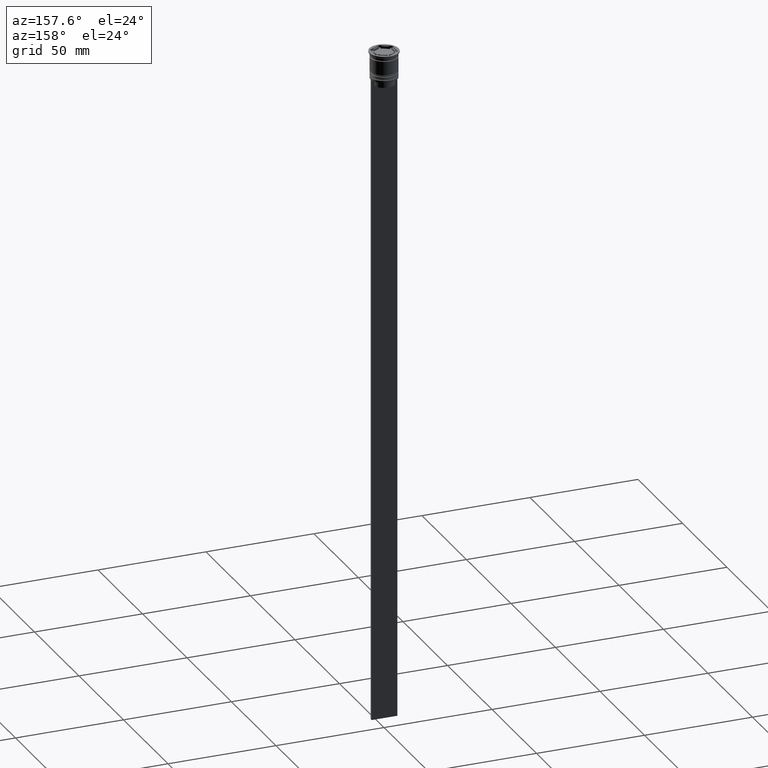
[diagram: clean part render]
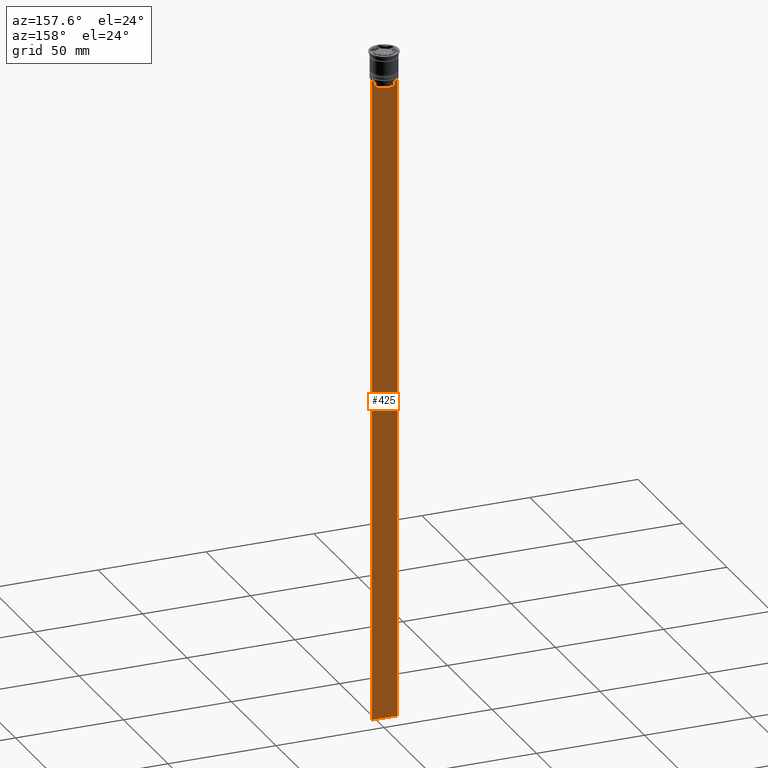
[diagram: same view with one face highlighted and labeled with its STEP entity id]
A machine part, auxiliary view. The second image highlights one B-rep face of the part: STEP entity #425.
In plain terms, the highlighted planar face has unit normal (0, -1, -0).
Its self-contained STEP definition (entity closure, byte-faithful):
#78 = VECTOR ( 'NONE', #1428, 1000.000000000000000 ) ;
#80 = CARTESIAN_POINT ( 'NONE',  ( 6.000000000000016875, 0.4999999999999982792, -0.4584054212077061097 ) ) ;
#98 = CARTESIAN_POINT ( 'NONE',  ( 6.000000000000016875, 0.4999999999999982792, -12.50000000000000000 ) ) ;
#99 = CARTESIAN_POINT ( 'NONE',  ( 5.125670687822231564, 0.4999999999999982792, -12.50000000000000000 ) ) ;
#161 = DIRECTION ( 'NONE',  ( 0.000000000000000000, 0.000000000000000000, -1.000000000000000000 ) ) ;
#176 = EDGE_CURVE ( 'NONE', #469, #898, #1552, .T. ) ;
#223 = LINE ( 'NONE', #1461, #939 ) ;
#224 = CARTESIAN_POINT ( 'NONE',  ( -5.999999999999983125, 0.4999999999999982792, -0.4584054212077061097 ) ) ;
#226 = VERTEX_POINT ( 'NONE', #772 ) ;
#233 = VERTEX_POINT ( 'NONE', #1141 ) ;
#237 = VERTEX_POINT ( 'NONE', #1515 ) ;
#260 = ORIENTED_EDGE ( 'NONE', *, *, #430, .T. ) ;
#278 = CARTESIAN_POINT ( 'NONE',  ( 6.000000000000016875, 0.4999999999999982792, -312.5000000000000000 ) ) ;
#281 = DIRECTION ( 'NONE',  ( -0.000000000000000000, -0.000000000000000000, 1.000000000000000000 ) ) ;
#403 = EDGE_CURVE ( 'NONE', #1387, #469, #1944, .T. ) ;
#425 = ADVANCED_FACE ( 'NONE', ( #1347 ), #1856, .F. ) ;
#430 = EDGE_CURVE ( 'NONE', #1653, #237, #836, .T. ) ;
#466 = VECTOR ( 'NONE', #281, 1000.000000000000000 ) ;
#467 = DIRECTION ( 'NONE',  ( 1.000000000000000000, 0.000000000000000000, 0.000000000000000000 ) ) ;
#469 = VERTEX_POINT ( 'NONE', #2085 ) ;
#496 = VERTEX_POINT ( 'NONE', #956 ) ;
#500 = LINE ( 'NONE', #1938, #661 ) ;
#506 = AXIS2_PLACEMENT_3D ( 'NONE', #80, #1517, #1540 ) ;
#516 = EDGE_LOOP ( 'NONE', ( #1471, #260, #989, #913, #1319, #1003, #1964, #864, #1070, #823 ) ) ;
#554 = EDGE_CURVE ( 'NONE', #898, #233, #500, .T. ) ;
#564 = DIRECTION ( 'NONE',  ( 0.000000000000000000, 0.000000000000000000, -1.000000000000000000 ) ) ;
#573 = CARTESIAN_POINT ( 'NONE',  ( 4.623040125285526436, 0.4999999999999982792, -13.00000000000000178 ) ) ;
#577 = CARTESIAN_POINT ( 'NONE',  ( 6.000000000000016875, 0.4999999999999982792, -12.50000000000000000 ) ) ;
#579 = VERTEX_POINT ( 'NONE', #1553 ) ;
#594 = CARTESIAN_POINT ( 'NONE',  ( 4.623040125285526436, 0.4999999999999982792, -13.00000000000000178 ) ) ;
#600 = DIRECTION ( 'NONE',  ( 1.000000000000000000, 0.000000000000000000, 0.000000000000000000 ) ) ;
#606 = CARTESIAN_POINT ( 'NONE',  ( -5.125670687822231564, 0.4999999999999982792, -12.50000000000000000 ) ) ;
#661 = VECTOR ( 'NONE', #161, 1000.000000000000000 ) ;
#772 = CARTESIAN_POINT ( 'NONE',  ( 4.623040125285526436, 0.4999999999999987232, -15.50000000000000000 ) ) ;
#773 = CARTESIAN_POINT ( 'NONE',  ( -4.623040125285526436, 0.4999999999999982792, -13.00000000000000178 ) ) ;
#823 = ORIENTED_EDGE ( 'NONE', *, *, #1905, .F. ) ;
#836 = B_SPLINE_CURVE_WITH_KNOTS ( 'NONE', 3,
 ( #606, #1494, #1324, #773 ),
 .UNSPECIFIED., .F., .F.,
 ( 4, 4 ),
 ( 0.008759809102772707357, 0.009468778395565351919 ),
 .UNSPECIFIED. ) ;
#864 = ORIENTED_EDGE ( 'NONE', *, *, #554, .T. ) ;
#898 = VERTEX_POINT ( 'NONE', #2239 ) ;
#913 = ORIENTED_EDGE ( 'NONE', *, *, #1445, .T. ) ;
#938 = DIRECTION ( 'NONE',  ( 0.000000000000000000, 0.000000000000000000, -1.000000000000000000 ) ) ;
#939 = VECTOR ( 'NONE', #564, 1000.000000000000000 ) ;
#956 = CARTESIAN_POINT ( 'NONE',  ( -4.623040125285526436, 0.4999999999999987232, -15.50000000000000000 ) ) ;
#989 = ORIENTED_EDGE ( 'NONE', *, *, #1224, .T. ) ;
#1003 = ORIENTED_EDGE ( 'NONE', *, *, #403, .T. ) ;
#1070 = ORIENTED_EDGE ( 'NONE', *, *, #2140, .T. ) ;
#1126 = CARTESIAN_POINT ( 'NONE',  ( -5.999999999999983125, 0.4999999999999985012, -12.50000000000000000 ) ) ;
#1141 = CARTESIAN_POINT ( 'NONE',  ( 6.000000000000016875, 0.4999999999999982792, -312.5000000000000000 ) ) ;
#1145 = LINE ( 'NONE', #1170, #466 ) ;
#1170 = CARTESIAN_POINT ( 'NONE',  ( 4.623040125285526436, 0.4999999999999982792, 0.000000000000000000 ) ) ;
#1180 = VECTOR ( 'NONE', #1305, 1000.000000000000000 ) ;
#1224 = EDGE_CURVE ( 'NONE', #237, #496, #223, .T. ) ;
#1305 = DIRECTION ( 'NONE',  ( -1.000000000000000000, 0.000000000000000000, 0.000000000000000000 ) ) ;
#1319 = ORIENTED_EDGE ( 'NONE', *, *, #1654, .T. ) ;
#1324 = CARTESIAN_POINT ( 'NONE',  ( -4.790630915080666519, 0.4999999999999982792, -12.83338087185995313 ) ) ;
#1347 = FACE_OUTER_BOUND ( 'NONE', #516, .T. ) ;
#1387 = VERTEX_POINT ( 'NONE', #594 ) ;
#1428 = DIRECTION ( 'NONE',  ( 1.000000000000000000, 0.000000000000000000, 0.000000000000000000 ) ) ;
#1445 = EDGE_CURVE ( 'NONE', #496, #226, #2281, .T. ) ;
#1461 = CARTESIAN_POINT ( 'NONE',  ( -4.623040125285526436, 0.4999999999999982792, 0.000000000000000000 ) ) ;
#1471 = ORIENTED_EDGE ( 'NONE', *, *, #2122, .T. ) ;
#1494 = CARTESIAN_POINT ( 'NONE',  ( -4.958169823806762189, 0.4999999999999982792, -12.66670956677067750 ) ) ;
#1515 = CARTESIAN_POINT ( 'NONE',  ( -4.623040125285526436, 0.4999999999999982792, -13.00000000000000178 ) ) ;
#1517 = DIRECTION ( 'NONE',  ( 0.000000000000000000, -1.000000000000000000, -0.000000000000000000 ) ) ;
#1540 = DIRECTION ( 'NONE',  ( 0.000000000000000000, 0.000000000000000000, -1.000000000000000000 ) ) ;
#1552 = LINE ( 'NONE', #98, #2294 ) ;
#1553 = CARTESIAN_POINT ( 'NONE',  ( -5.999999999999983125, 0.4999999999999982792, -312.5000000000000000 ) ) ;
#1566 = VECTOR ( 'NONE', #600, 1000.000000000000000 ) ;
#1653 = VERTEX_POINT ( 'NONE', #1872 ) ;
#1654 = EDGE_CURVE ( 'NONE', #226, #1387, #1145, .T. ) ;
#1680 = CARTESIAN_POINT ( 'NONE',  ( 4.958169719475987058, 0.4999999999999982792, -12.66670967060858111 ) ) ;
#1757 = CARTESIAN_POINT ( 'NONE',  ( 0.000000000000000000, 0.4999999999999987232, -15.50000000000000000 ) ) ;
#1834 = CARTESIAN_POINT ( 'NONE',  ( 4.790630799407576745, 0.4999999999999982792, -12.83338098686239093 ) ) ;
#1851 = LINE ( 'NONE', #577, #1566 ) ;
#1856 = PLANE ( 'NONE',  #506 ) ;
#1872 = CARTESIAN_POINT ( 'NONE',  ( -5.125670687822231564, 0.4999999999999982792, -12.50000000000000000 ) ) ;
#1905 = EDGE_CURVE ( 'NONE', #2189, #579, #1943, .T. ) ;
#1938 = CARTESIAN_POINT ( 'NONE',  ( 6.000000000000016875, 0.4999999999999982792, -0.4584054212077061097 ) ) ;
#1943 = LINE ( 'NONE', #224, #2202 ) ;
#1944 = B_SPLINE_CURVE_WITH_KNOTS ( 'NONE', 3,
 ( #573, #1834, #1680, #99 ),
 .UNSPECIFIED., .F., .F.,
 ( 4, 4 ),
 ( 0.02203698174624552433, 0.02275222543365896036 ),
 .UNSPECIFIED. ) ;
#1964 = ORIENTED_EDGE ( 'NONE', *, *, #176, .T. ) ;
#2044 = LINE ( 'NONE', #278, #1180 ) ;
#2085 = CARTESIAN_POINT ( 'NONE',  ( 5.125670687822231564, 0.4999999999999982792, -12.50000000000000000 ) ) ;
#2122 = EDGE_CURVE ( 'NONE', #2189, #1653, #1851, .T. ) ;
#2140 = EDGE_CURVE ( 'NONE', #233, #579, #2044, .T. ) ;
#2189 = VERTEX_POINT ( 'NONE', #1126 ) ;
#2202 = VECTOR ( 'NONE', #938, 1000.000000000000000 ) ;
#2239 = CARTESIAN_POINT ( 'NONE',  ( 6.000000000000016875, 0.4999999999999982792, -12.50000000000000000 ) ) ;
#2281 = LINE ( 'NONE', #1757, #78 ) ;
#2294 = VECTOR ( 'NONE', #467, 1000.000000000000000 ) ;